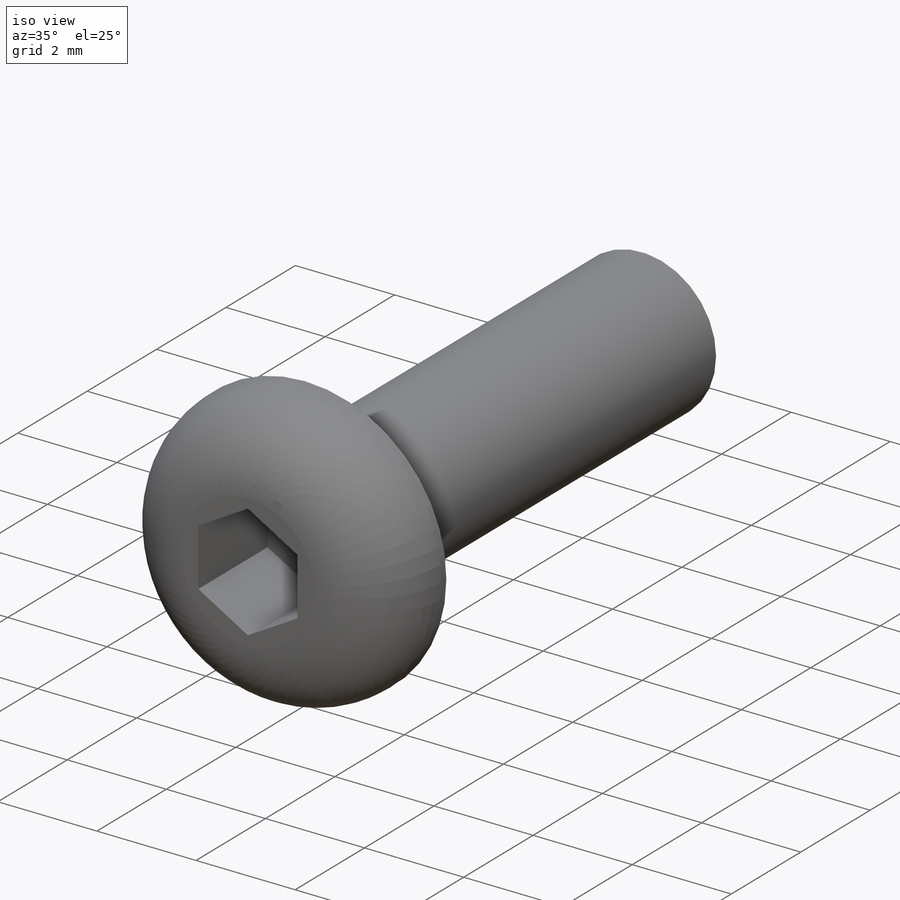
[diagram: iso view]
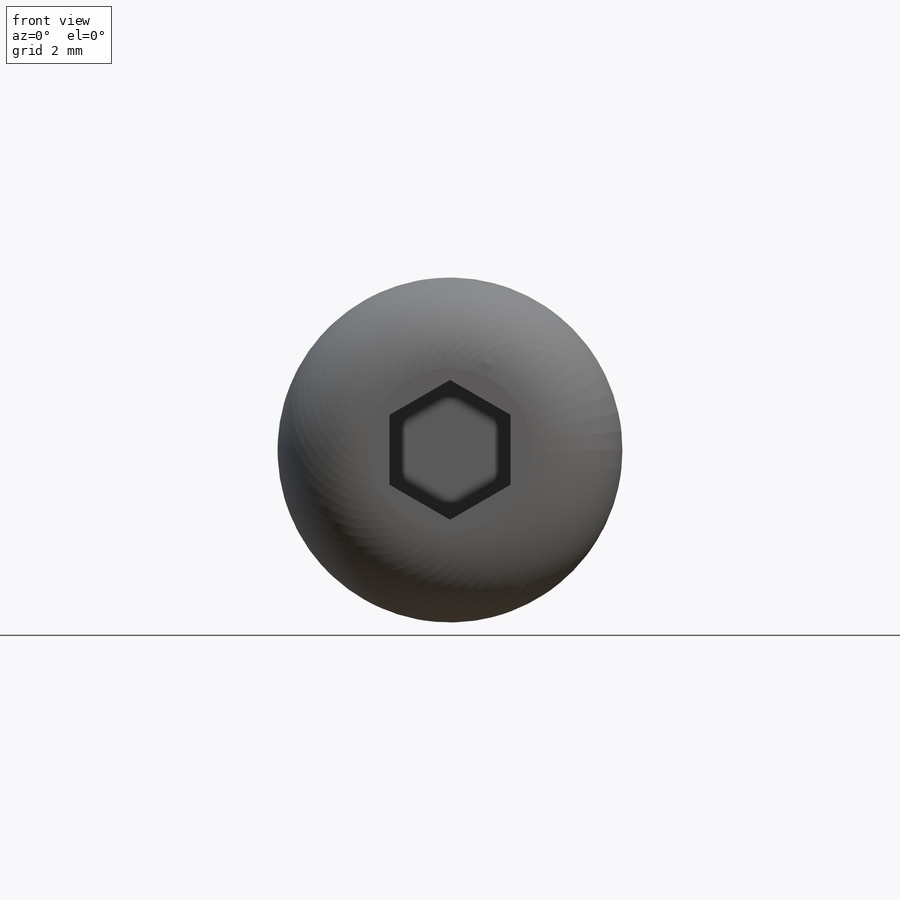
[diagram: front view]
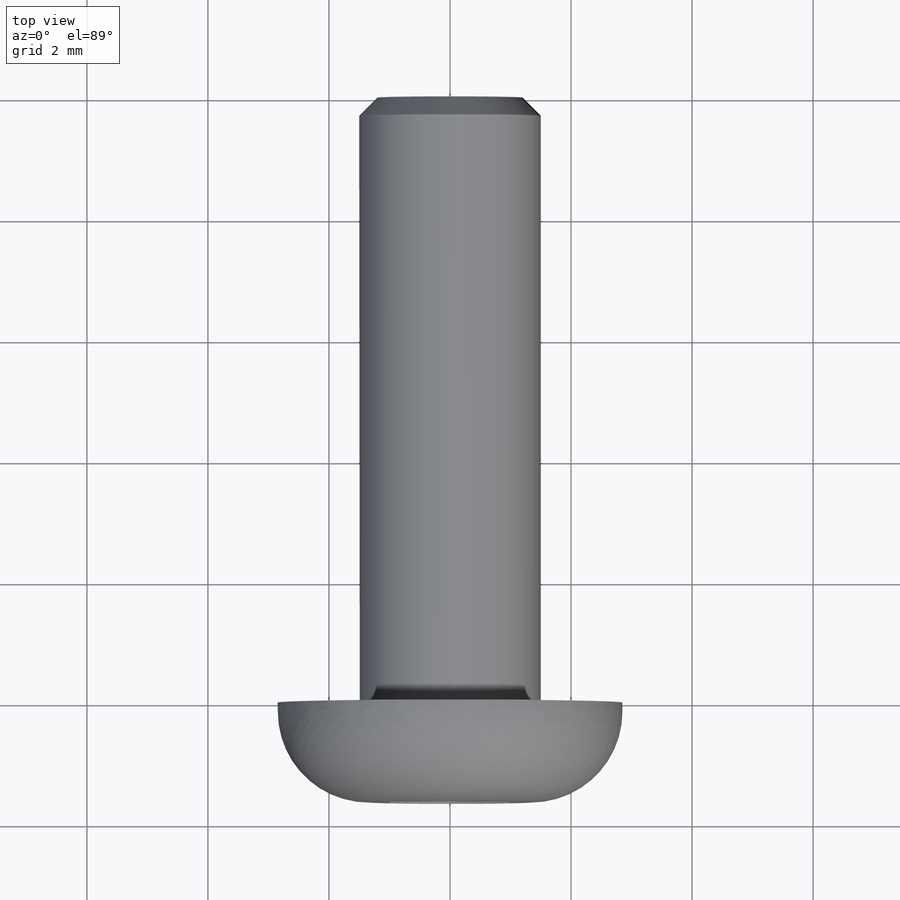
[diagram: top view]
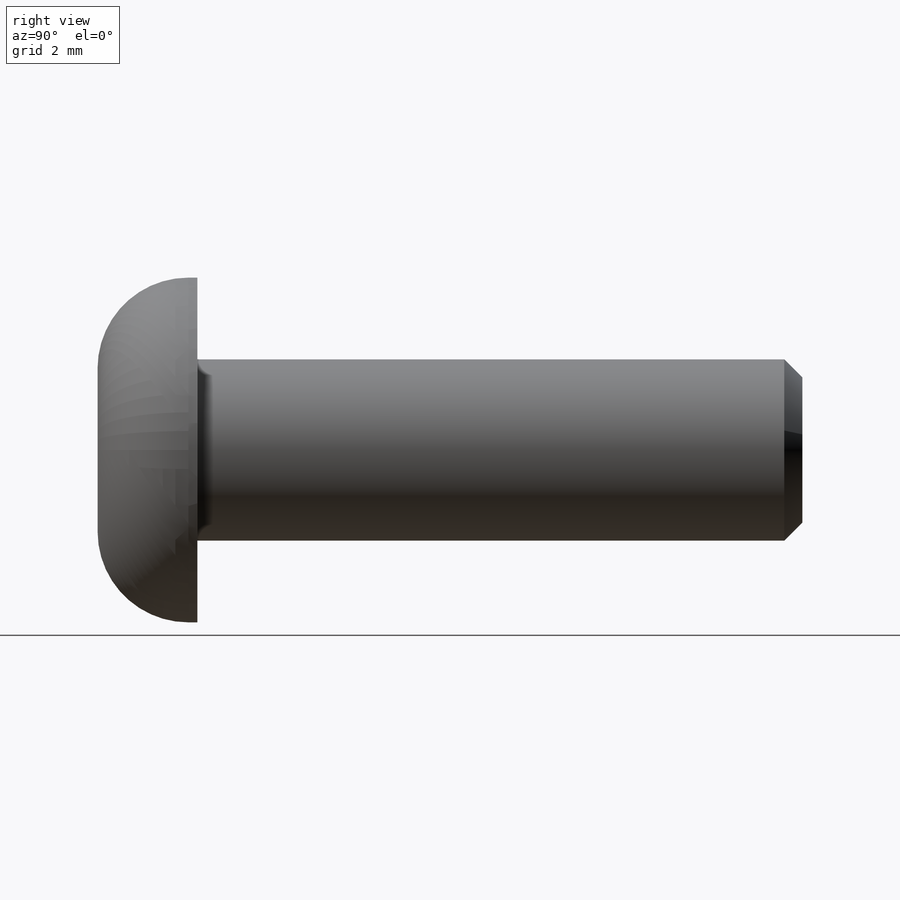
[diagram: right view]
SOLIDWORKS PART (.sldprt)
format: sldprt  version: not decoded by parser v0  size: 174,080 bytes
history: native  units: mm
features: sketch x3, extrude x2, material x1, chamfer x1, cut_extrude x1, fillet x1 (+12 scaffold rows collapsed)
feature tree (21):
  scaffold x12  (default folders/planes/origin — collapsed)
  material  "Material <not specified>"
  sketch  "Sketch1"  dims[D1=5.7mm]
  extrude  "Boss-Extrude1"  Depth=1.65mm
  sketch  "Sketch2"  dims[D1=3.0mm]
  extrude  "Boss-Extrude2"  Depth=10mm
  chamfer  "Chamfer1"  Distance=0.3mm Angle=45deg
  sketch  "Sketch3"  dims[D1=2.0mm]
  cut_extrude  "Cut-Extrude1"  Depth=2mm
  fillet  "Fillet1"  Radius=1.5mm
decode coverage: 8 of 8 modeling features carry decoded parameters
note: suppression state not decoded; provenance and decode notes live in map.json
